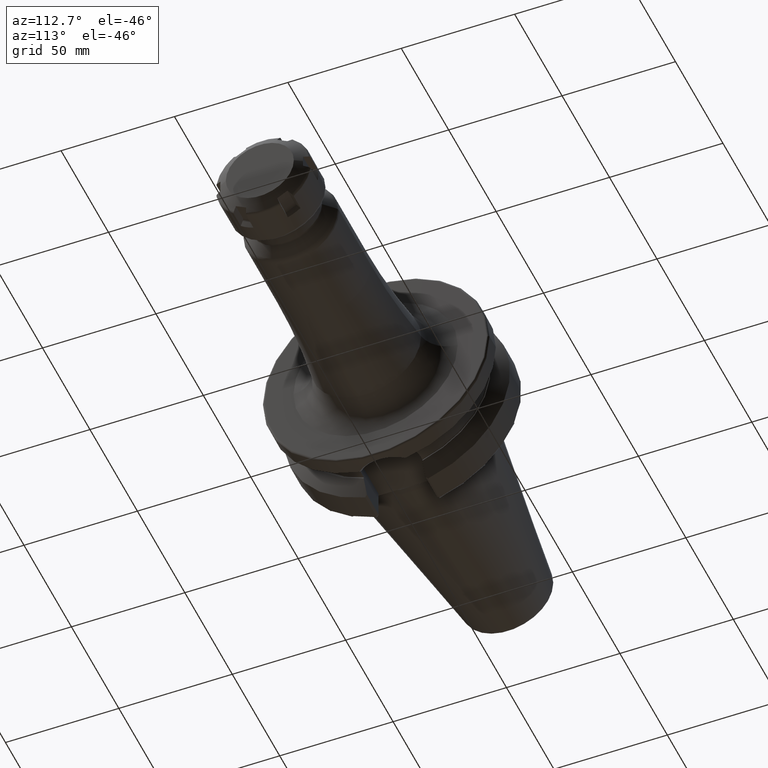
[diagram: clean part render]
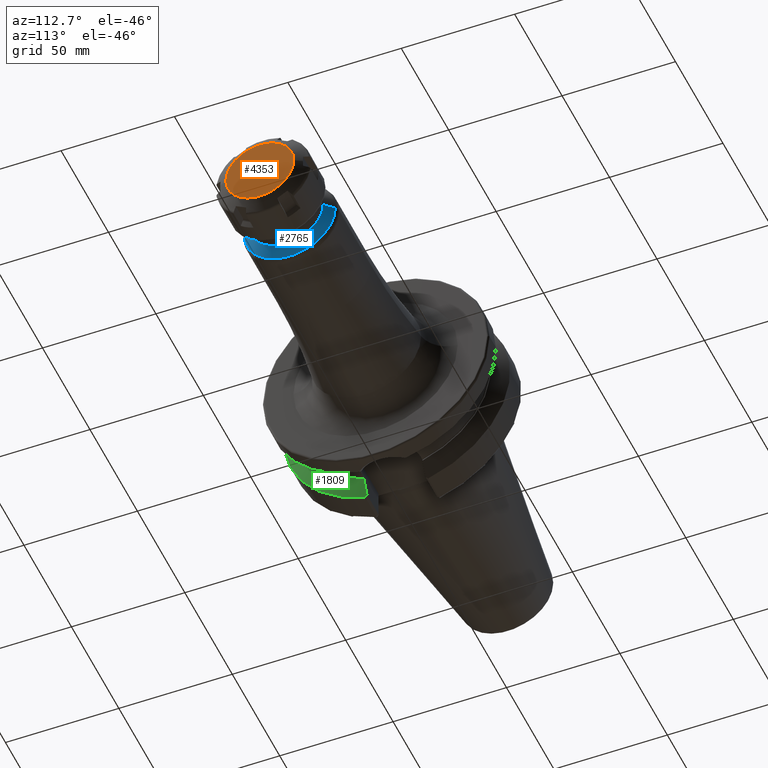
[diagram: same view with three faces highlighted in distinct colors, each labeled with its STEP entity id]
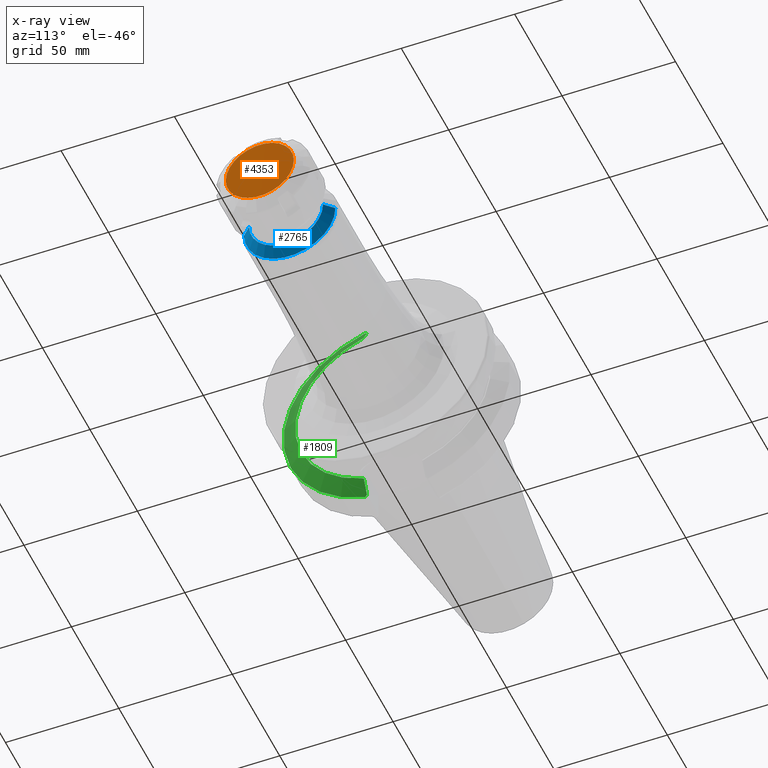
[diagram: x-ray of the same camera — body ghosted, the three highlighted faces saturated]
A machine part, auxiliary view with three faces highlighted in distinct colors.
The next image is the same camera in x-ray (body ghosted, the three faces saturated) — at least one of them is partly hidden behind the body in this view.
Their STEP definitions:

[orange] entity #4353 — the highlighted planar face has unit normal (1, 0, 0).
#3508=CARTESIAN_POINT('',(2.E1,-2.266909448450E-14,0.E0));
#3509=DIRECTION('',(-1.E0,0.E0,0.E0));
#3510=DIRECTION('',(0.E0,1.E0,0.E0));
#3511=AXIS2_PLACEMENT_3D('',#3508,#3509,#3510);
#3830=CARTESIAN_POINT('',(2.E1,-2.266909448450E-14,0.E0));
#3831=DIRECTION('',(1.E0,0.E0,0.E0));
#3832=DIRECTION('',(0.E0,1.E0,0.E0));
#3833=AXIS2_PLACEMENT_3D('',#3830,#3831,#3832);
#4240=CARTESIAN_POINT('',(2.E1,1.5E1,0.E0));
#4241=CARTESIAN_POINT('',(2.E1,-1.5E1,0.E0));
#4242=VERTEX_POINT('',#4240);
#4243=VERTEX_POINT('',#4241);
#4342=CARTESIAN_POINT('',(2.E1,-2.266909448450E-14,0.E0));
#4343=DIRECTION('',(1.E0,0.E0,0.E0));
#4344=DIRECTION('',(0.E0,-1.E0,0.E0));
#4345=AXIS2_PLACEMENT_3D('',#4342,#4343,#4344);
#4346=PLANE('',#4345);
#4348=ORIENTED_EDGE('',*,*,#4347,.T.);
#4350=ORIENTED_EDGE('',*,*,#4349,.F.);
#4351=EDGE_LOOP('',(#4348,#4350));
#4352=FACE_OUTER_BOUND('',#4351,.F.);
#4353=ADVANCED_FACE('',(#4352),#4346,.T.);
#3512=CIRCLE('',#3511,1.5E1);
#3834=CIRCLE('',#3833,1.5E1);
#4347=EDGE_CURVE('',#4242,#4243,#3512,.T.);
#4349=EDGE_CURVE('',#4242,#4243,#3834,.T.);

[blue] entity #2765 — the highlighted conical surface has half-angle 45 deg.
#912=CARTESIAN_POINT('',(1.284786796564E2,0.E0,0.E0));
#913=DIRECTION('',(-1.E0,0.E0,0.E0));
#914=DIRECTION('',(0.E0,1.E0,0.E0));
#915=AXIS2_PLACEMENT_3D('',#912,#913,#914);
#917=DIRECTION('',(-7.071067811865E-1,-7.071067811865E-1,-1.827993156861E-12));
#918=VECTOR('',#917,5.414213562372E0);
#919=CARTESIAN_POINT('',(1.323071067812E2,-1.629289321881E1,
2.942322413259E-13));
#920=LINE('',#919,#918);
#921=CARTESIAN_POINT('',(1.323071067812E2,0.E0,0.E0));
#922=DIRECTION('',(1.E0,0.E0,0.E0));
#923=DIRECTION('',(0.E0,-1.E0,0.E0));
#924=AXIS2_PLACEMENT_3D('',#921,#922,#923);
#926=DIRECTION('',(-7.071067811865E-1,7.071067811865E-1,1.828793932646E-12));
#927=VECTOR('',#926,5.414213562372E0);
#928=CARTESIAN_POINT('',(1.323071067812E2,1.629289321881E1,
-2.963964018511E-13));
#929=LINE('',#928,#927);
#1483=CARTESIAN_POINT('',(1.323071067812E2,-1.629289321881E1,0.E0));
#1484=CARTESIAN_POINT('',(1.323071067812E2,1.629289321881E1,0.E0));
#1485=VERTEX_POINT('',#1483);
#1486=VERTEX_POINT('',#1484);
#1495=CARTESIAN_POINT('',(1.284786796564E2,2.012132034356E1,0.E0));
#1496=CARTESIAN_POINT('',(1.284786796564E2,-2.012132034356E1,0.E0));
#1497=VERTEX_POINT('',#1495);
#1498=VERTEX_POINT('',#1496);
#2751=CARTESIAN_POINT('',(1.303928932188E2,0.E0,0.E0));
#2752=DIRECTION('',(-1.E0,0.E0,0.E0));
#2753=DIRECTION('',(0.E0,1.E0,0.E0));
#2754=AXIS2_PLACEMENT_3D('',#2751,#2752,#2753);
#2755=CONICAL_SURFACE('',#2754,1.820710678119E1,4.5E1);
#2756=ORIENTED_EDGE('',*,*,#2745,.T.);
#2758=ORIENTED_EDGE('',*,*,#2757,.F.);
#2760=ORIENTED_EDGE('',*,*,#2759,.T.);
#2762=ORIENTED_EDGE('',*,*,#2761,.T.);
#2763=EDGE_LOOP('',(#2756,#2758,#2760,#2762));
#2764=FACE_OUTER_BOUND('',#2763,.F.);
#2765=ADVANCED_FACE('',(#2764),#2755,.T.);
#916=CIRCLE('',#915,2.012132034356E1);
#925=CIRCLE('',#924,1.629289321881E1);
#2745=EDGE_CURVE('',#1497,#1498,#916,.T.);
#2757=EDGE_CURVE('',#1485,#1498,#920,.T.);
#2759=EDGE_CURVE('',#1485,#1486,#925,.T.);
#2761=EDGE_CURVE('',#1486,#1497,#929,.T.);

[green] entity #1809 — the highlighted conical surface has half-angle 60 deg.
#204=CARTESIAN_POINT('',(1.96625E1,0.E0,0.E0));
#205=DIRECTION('',(1.E0,0.E0,0.E0));
#206=DIRECTION('',(0.E0,-2.995626091154E-1,9.540766443111E-1));
#207=AXIS2_PLACEMENT_3D('',#204,#205,#206);
#209=CARTESIAN_POINT('',(1.566933176383E1,0.E0,0.E0));
#210=DIRECTION('',(1.E0,0.E0,0.E0));
#211=DIRECTION('',(0.E0,-2.837968869610E-1,9.588844179312E-1));
#212=AXIS2_PLACEMENT_3D('',#209,#210,#211);
#285=CARTESIAN_POINT('',(1.566933176383E1,-1.386327333875E1,-4.802665727057E1));
#286=CARTESIAN_POINT('',(1.576320934287E1,-1.370067260214E1,-4.790435382082E1));
#287=CARTESIAN_POINT('',(1.594902007039E1,-1.337794118947E1,-4.766160482756E1));
#288=CARTESIAN_POINT('',(1.613095630502E1,-1.306015522703E1,-4.742257565524E1));
#289=CARTESIAN_POINT('',(1.622095963665E1,-1.29025E1,-4.730399207105E1));
#332=CARTESIAN_POINT('',(1.96625E1,-1.29025E1,-4.109315892118E1));
#333=CARTESIAN_POINT('',(1.930371923002E1,-1.29025E1,-4.174449707739E1));
#334=CARTESIAN_POINT('',(1.857040869022E1,-1.29025E1,-4.307298282769E1));
#335=CARTESIAN_POINT('',(1.742403081668E1,-1.29025E1,-4.514175024416E1));
#336=CARTESIAN_POINT('',(1.662730270625E1,-1.29025E1,-4.657447448688E1));
#337=CARTESIAN_POINT('',(1.622095963665E1,-1.29025E1,-4.730399207105E1));
#533=CARTESIAN_POINT('',(1.640508297825E1,-1.29025E1,4.697335042340E1));
#534=CARTESIAN_POINT('',(1.678800997375E1,-1.29025E1,4.628553610571E1));
#535=CARTESIAN_POINT('',(1.753988026520E1,-1.29025E1,4.493290409157E1));
#536=CARTESIAN_POINT('',(1.862508060803E1,-1.29025E1,4.297399674455E1));
#537=CARTESIAN_POINT('',(1.932130614689E1,-1.29025E1,4.171256941858E1));
#538=CARTESIAN_POINT('',(1.96625E1,-1.29025E1,4.109315892118E1));
#561=CARTESIAN_POINT('',(1.640508297825E1,-1.29025E1,4.697335042340E1));
#562=CARTESIAN_POINT('',(1.628591605470E1,-1.311202428533E1,4.712984680879E1));
#563=CARTESIAN_POINT('',(1.604413623418E1,-1.353551919472E1,4.744616060719E1));
#564=CARTESIAN_POINT('',(1.579542715791E1,-1.396789325780E1,4.776910635976E1));
#565=CARTESIAN_POINT('',(1.566933176383E1,-1.418629688696E1,4.793223484134E1));
#1296=CARTESIAN_POINT('',(1.96625E1,-1.29025E1,4.109315892118E1));
#1297=CARTESIAN_POINT('',(1.96625E1,-1.29025E1,-4.109315892118E1));
#1298=VERTEX_POINT('',#1296);
#1299=VERTEX_POINT('',#1297);
#1403=VERTEX_POINT('',#533);
#1411=VERTEX_POINT('',#337);
#1414=CARTESIAN_POINT('',(1.566933176383E1,-1.418629688696E1,4.793223484134E1));
#1415=CARTESIAN_POINT('',(1.566933176383E1,-1.386327333875E1,
-4.802665727057E1));
#1416=VERTEX_POINT('',#1414);
#1417=VERTEX_POINT('',#1415);
#1791=CARTESIAN_POINT('',(1.766591588191E1,0.E0,0.E0));
#1792=DIRECTION('',(-1.E0,0.E0,0.E0));
#1793=DIRECTION('',(0.E0,1.E0,0.E0));
#1794=AXIS2_PLACEMENT_3D('',#1791,#1792,#1793);
#1795=CONICAL_SURFACE('',#1794,4.652931486589E1,6.E1);
#1796=ORIENTED_EDGE('',*,*,#1762,.T.);
#1798=ORIENTED_EDGE('',*,*,#1797,.T.);
#1800=ORIENTED_EDGE('',*,*,#1799,.F.);
#1802=ORIENTED_EDGE('',*,*,#1801,.F.);
#1804=ORIENTED_EDGE('',*,*,#1803,.F.);
#1806=ORIENTED_EDGE('',*,*,#1805,.T.);
#1807=EDGE_LOOP('',(#1796,#1798,#1800,#1802,#1804,#1806));
#1808=FACE_OUTER_BOUND('',#1807,.F.);
#1809=ADVANCED_FACE('',(#1808),#1795,.T.);
#208=CIRCLE('',#207,4.307112973177E1);
#213=CIRCLE('',#212,4.99875E1);
#290=B_SPLINE_CURVE_WITH_KNOTS('',3,(#285,#286,#287,#288,#289),.UNSPECIFIED.,
.F.,.F.,(4,1,4),(0.E0,5.E-1,1.E0),.UNSPECIFIED.);
#338=B_SPLINE_CURVE_WITH_KNOTS('',3,(#332,#333,#334,#335,#336,#337),
.UNSPECIFIED.,.F.,.F.,(4,1,1,4),(0.E0,3.333333333333E-1,6.666666666667E-1,1.E0),
.UNSPECIFIED.);
#539=B_SPLINE_CURVE_WITH_KNOTS('',3,(#533,#534,#535,#536,#537,#538),
.UNSPECIFIED.,.F.,.F.,(4,1,1,4),(0.E0,3.333333333333E-1,6.666666666667E-1,1.E0),
.UNSPECIFIED.);
#566=B_SPLINE_CURVE_WITH_KNOTS('',3,(#561,#562,#563,#564,#565),.UNSPECIFIED.,
.F.,.F.,(4,1,4),(0.E0,5.E-1,1.E0),.UNSPECIFIED.);
#1762=EDGE_CURVE('',#1298,#1299,#208,.T.);
#1797=EDGE_CURVE('',#1299,#1411,#338,.T.);
#1799=EDGE_CURVE('',#1417,#1411,#290,.T.);
#1801=EDGE_CURVE('',#1416,#1417,#213,.T.);
#1803=EDGE_CURVE('',#1403,#1416,#566,.T.);
#1805=EDGE_CURVE('',#1403,#1298,#539,.T.);